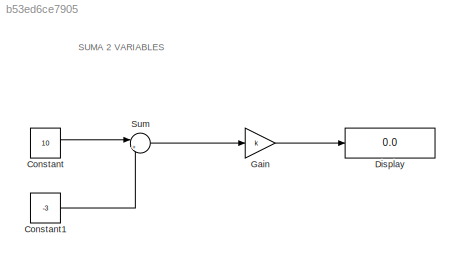
MODEL slx_b53ed6ce7905
KIND model
CONFIG AbsTol = auto
CONFIG EnableMultiTasking = off
CONFIG FixedStep = 0.5
CONFIG MaxStep = auto
CONFIG MinStep = auto
CONFIG RelTol = 1e-3
CONFIG SampleTimeConstraint = Unconstrained
CONFIG SolverName = FixedStepAuto
CONFIG StartTime = 0.0
CONFIG StopTime = 1
BLOCK [Constant] Constant
  Value = 10
BLOCK [Constant] Constant1
  Value = -3
BLOCK [Display] Display
  Decimation = 1
  Ports = [1]
BLOCK [Gain] Gain
  Gain = k
BLOCK [Sum] Sum
  Inputs = |+-
  Ports = [2, 1]
ANNOTATION (root): SUMA 2 VARIABLES
LINE Constant1:1 -> Sum:2
LINE Constant:1 -> Sum:1
LINE Gain:1 -> Display:1
LINE Sum:1 -> Gain:1
